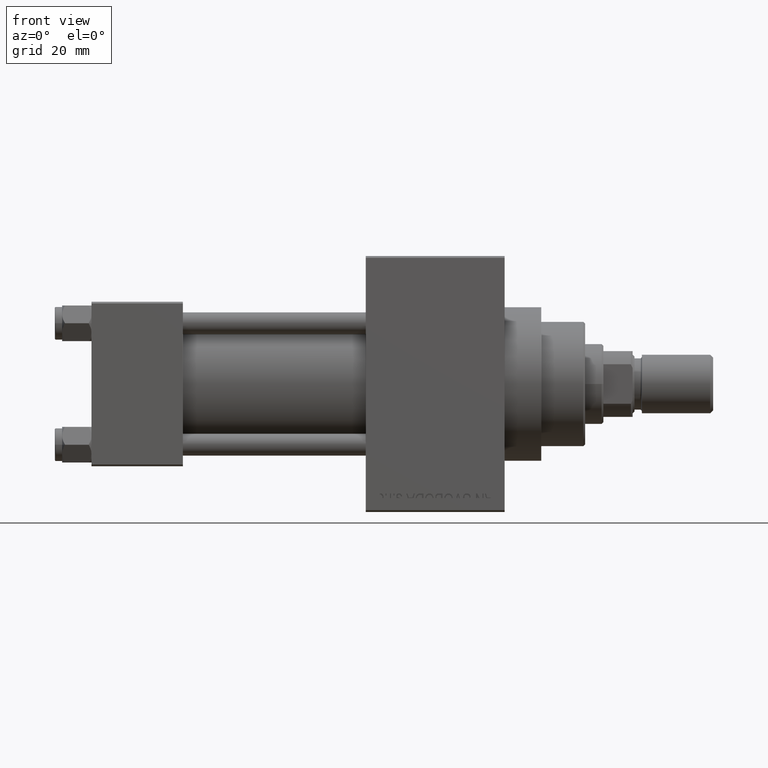
[diagram: clean part render]
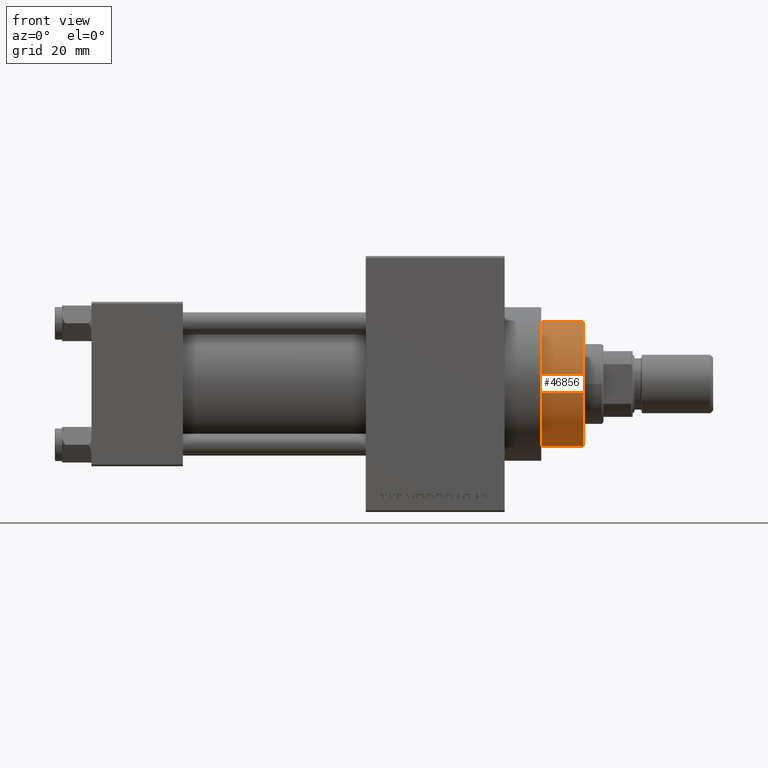
[diagram: same view with one face highlighted and labeled with its STEP entity id]
A machine part, front view. The second image highlights one B-rep face of the part: STEP entity #46856.
In plain terms, the highlighted cylindrical surface (partial cylindrical patch) has radius 17 mm, axis along (-1, 0, 0).
Its self-contained STEP definition (entity closure, byte-faithful):
#1327 = ORIENTED_EDGE ( 'NONE', *, *, #39857, .T. ) ;
#1482 = DIRECTION ( 'NONE',  ( -0.000000000000000000, -0.000000000000000000, -1.000000000000000000 ) ) ;
#1552 = CARTESIAN_POINT ( 'NONE',  ( -17.00000000000000000, 0.000000000000000000, 54.76000000000001222 ) ) ;
#2319 = VERTEX_POINT ( 'NONE', #21215 ) ;
#3989 = VECTOR ( 'NONE', #25481, 1000.000000000000000 ) ;
#4058 = DIRECTION ( 'NONE',  ( 1.000000000000000000, 0.000000000000000000, 0.000000000000000000 ) ) ;
#5362 = VERTEX_POINT ( 'NONE', #16373 ) ;
#6228 = ORIENTED_EDGE ( 'NONE', *, *, #34630, .T. ) ;
#6657 = CARTESIAN_POINT ( 'NONE',  ( 0.000000000000000000, 0.000000000000000000, 55.26000000000000512 ) ) ;
#9891 = DIRECTION ( 'NONE',  ( -1.000000000000000000, 0.000000000000000000, 0.000000000000000000 ) ) ;
#10385 = CARTESIAN_POINT ( 'NONE',  ( 17.00000000000000000, 2.081899558550500280E-15, 55.26000000000000512 ) ) ;
#11417 = VERTEX_POINT ( 'NONE', #22871 ) ;
#12597 = CARTESIAN_POINT ( 'NONE',  ( 0.000000000000000000, 0.000000000000000000, 54.76000000000001222 ) ) ;
#13596 = ORIENTED_EDGE ( 'NONE', *, *, #31685, .T. ) ;
#16373 = CARTESIAN_POINT ( 'NONE',  ( -17.00000000000000000, 0.000000000000000000, 43.25999999999999801 ) ) ;
#18188 = CIRCLE ( 'NONE', #42735, 17.00000000000000000 ) ;
#20081 = CARTESIAN_POINT ( 'NONE',  ( -17.00000000000000000, 0.000000000000000000, 55.26000000000000512 ) ) ;
#21215 = CARTESIAN_POINT ( 'NONE',  ( 17.00000000000000000, 2.081899558550500280E-15, 54.76000000000001222 ) ) ;
#22871 = CARTESIAN_POINT ( 'NONE',  ( 17.00000000000000000, 2.081899558550500280E-15, 43.25999999999999801 ) ) ;
#23375 = EDGE_CURVE ( 'NONE', #30831, #5362, #23545, .T. ) ;
#23545 = LINE ( 'NONE', #20081, #44829 ) ;
#25195 = DIRECTION ( 'NONE',  ( 0.000000000000000000, 0.000000000000000000, -1.000000000000000000 ) ) ;
#25481 = DIRECTION ( 'NONE',  ( -0.000000000000000000, -0.000000000000000000, -1.000000000000000000 ) ) ;
#26229 = AXIS2_PLACEMENT_3D ( 'NONE', #6657, #43830, #9891 ) ;
#27639 = CARTESIAN_POINT ( 'NONE',  ( 0.000000000000000000, 0.000000000000000000, 43.25999999999999801 ) ) ;
#28721 = CYLINDRICAL_SURFACE ( 'NONE', #26229, 17.00000000000000000 ) ;
#29157 = AXIS2_PLACEMENT_3D ( 'NONE', #12597, #25195, #4058 ) ;
#30831 = VERTEX_POINT ( 'NONE', #1552 ) ;
#31685 = EDGE_CURVE ( 'NONE', #30831, #2319, #44189, .T. ) ;
#34630 = EDGE_CURVE ( 'NONE', #11417, #5362, #18188, .T. ) ;
#37359 = LINE ( 'NONE', #10385, #3989 ) ;
#39282 = DIRECTION ( 'NONE',  ( 0.000000000000000000, 0.000000000000000000, 1.000000000000000000 ) ) ;
#39857 = EDGE_CURVE ( 'NONE', #2319, #11417, #37359, .T. ) ;
#42735 = AXIS2_PLACEMENT_3D ( 'NONE', #27639, #39282, #42759 ) ;
#42759 = DIRECTION ( 'NONE',  ( 1.000000000000000000, 0.000000000000000000, 0.000000000000000000 ) ) ;
#43830 = DIRECTION ( 'NONE',  ( -0.000000000000000000, -0.000000000000000000, -1.000000000000000000 ) ) ;
#44189 = CIRCLE ( 'NONE', #29157, 17.00000000000000000 ) ;
#44307 = FACE_OUTER_BOUND ( 'NONE', #44311, .T. ) ;
#44311 = EDGE_LOOP ( 'NONE', ( #13596, #1327, #6228, #48596 ) ) ;
#44829 = VECTOR ( 'NONE', #1482, 1000.000000000000000 ) ;
#46856 = ADVANCED_FACE ( 'NONE', ( #44307 ), #28721, .T. ) ;
#48596 = ORIENTED_EDGE ( 'NONE', *, *, #23375, .F. ) ;